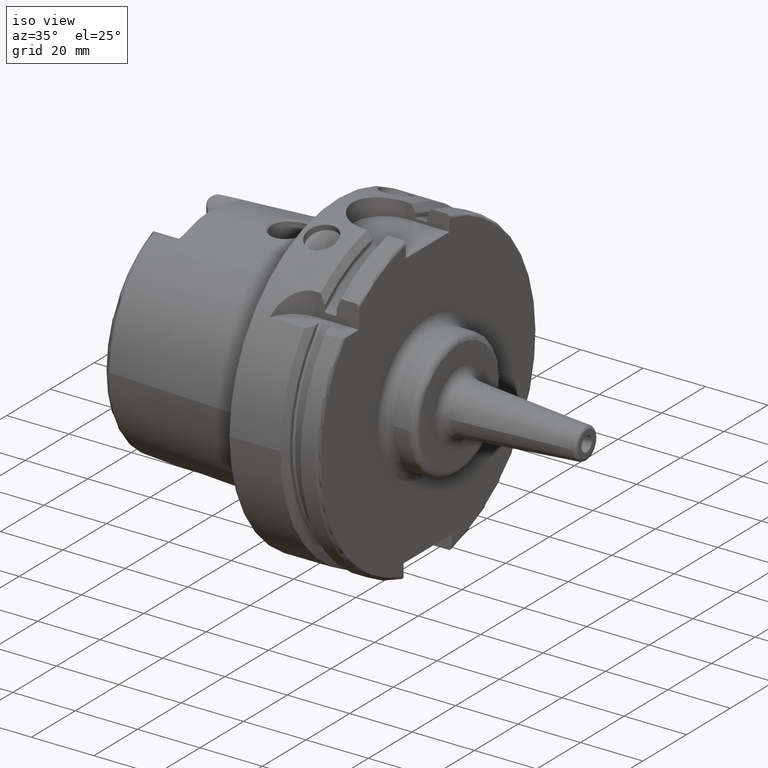
[diagram: clean part render]
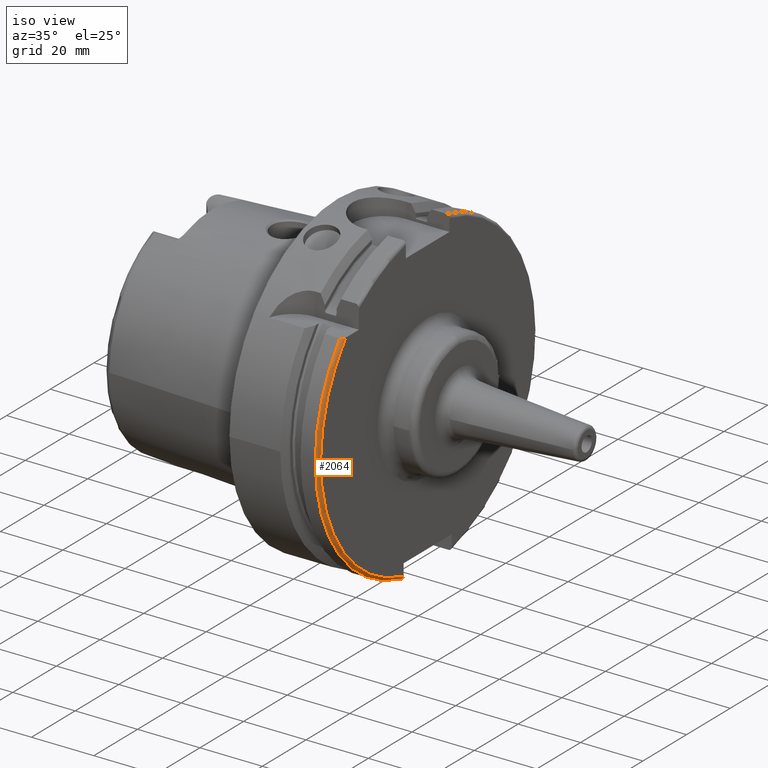
[diagram: same view with one face highlighted and labeled with its STEP entity id]
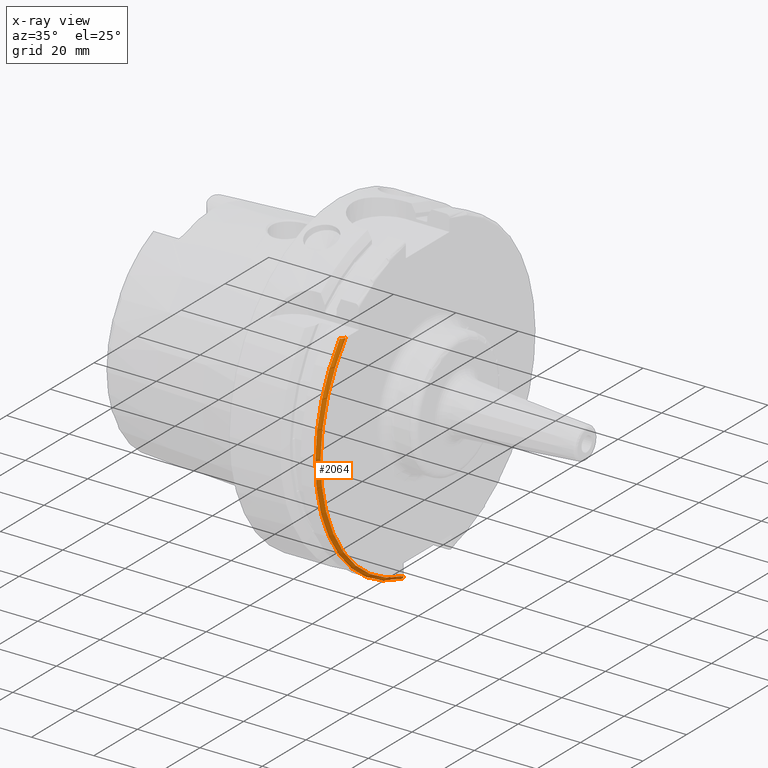
[diagram: x-ray of the same camera — body ghosted, the highlighted face saturated]
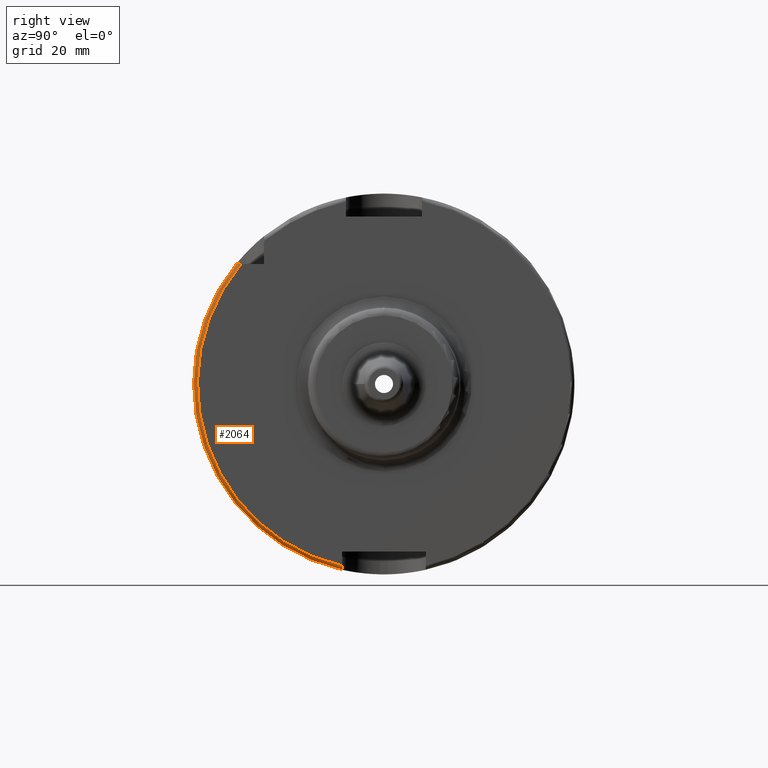
[diagram: same view with one face highlighted and labeled with its STEP entity id]
A machine part, iso view. The second image highlights one B-rep face of the part: STEP entity #2064.
The next image is the same camera in x-ray: the body ghosted, the highlighted face saturated — about 0% of this face is hidden behind the body in this view.
A second angle (right view) of the same face is appended — the face is thin or edge-on in the first view.
In plain terms, the highlighted toroidal blend (fillet) surface has major radius 49 mm and minor (blend) radius 1 mm.
Its self-contained STEP definition (entity closure, byte-faithful):
#76=B_SPLINE_CURVE_WITH_KNOTS('',3,(#4108,#4109,#4110,#4111,#4112,#4113,
#4114,#4115,#4116,#4117),.UNSPECIFIED.,.F.,.F.,(4,2,2,2,4),(-0.170825962094808,
-0.118543630596578,-0.0729156509442915,-0.0340271521483428,0.),
 .UNSPECIFIED.);
#86=B_SPLINE_CURVE_WITH_KNOTS('',3,(#4305,#4306,#4307,#4308,#4309,#4310,
#4311,#4312,#4313,#4314),.UNSPECIFIED.,.F.,.F.,(4,2,2,2,4),(0.,0.0367272650241839,
0.0739245844742874,0.111709319934006,0.150007250748607),.UNSPECIFIED.);
#474=FACE_OUTER_BOUND('',#602,.T.);
#602=EDGE_LOOP('',(#1693,#1694,#1695,#1696));
#683=CIRCLE('',#2173,49.);
#742=CIRCLE('',#2290,50.);
#815=VERTEX_POINT('',#3082);
#816=VERTEX_POINT('',#3084);
#928=VERTEX_POINT('',#4106);
#960=VERTEX_POINT('',#4304);
#1031=EDGE_CURVE('',#815,#816,#683,.T.);
#1177=EDGE_CURVE('',#815,#928,#76,.T.);
#1223=EDGE_CURVE('',#960,#816,#86,.T.);
#1238=EDGE_CURVE('',#928,#960,#742,.T.);
#1693=ORIENTED_EDGE('',*,*,#1177,.T.);
#1694=ORIENTED_EDGE('',*,*,#1238,.T.);
#1695=ORIENTED_EDGE('',*,*,#1223,.T.);
#1696=ORIENTED_EDGE('',*,*,#1031,.F.);
#1987=TOROIDAL_SURFACE('',#2289,49.,1.);
#2064=ADVANCED_FACE('',(#474),#1987,.T.);
#2173=AXIS2_PLACEMENT_3D('',#3085,#2465,#2466);
#2289=AXIS2_PLACEMENT_3D('',#4373,#2774,#2775);
#2290=AXIS2_PLACEMENT_3D('',#4374,#2776,#2777);
#2465=DIRECTION('center_axis',(1.,0.,0.));
#2466=DIRECTION('ref_axis',(0.,0.,-1.));
#2774=DIRECTION('center_axis',(1.,0.,0.));
#2775=DIRECTION('ref_axis',(0.,0.,-1.));
#2776=DIRECTION('center_axis',(1.,0.,0.));
#2777=DIRECTION('ref_axis',(0.,0.,-1.));
#3082=CARTESIAN_POINT('',(29.,-37.5333185316726,31.5));
#3084=CARTESIAN_POINT('',(29.,-11.,-47.7493455452533));
#3085=CARTESIAN_POINT('Origin',(29.,0.,0.));
#4106=CARTESIAN_POINT('',(28.,-38.8297566307078,31.5));
#4108=CARTESIAN_POINT('Ctrl Pts',(29.,-37.5333185316726,31.5));
#4109=CARTESIAN_POINT('Ctrl Pts',(29.,-37.7075929700001,31.5));
#4110=CARTESIAN_POINT('Ctrl Pts',(28.9664820083304,-37.9140187901503,31.5));
#4111=CARTESIAN_POINT('Ctrl Pts',(28.8572425149189,-38.2215616508799,31.5));
#4112=CARTESIAN_POINT('Ctrl Pts',(28.7693181429129,-38.3814988424326,31.5));
#4113=CARTESIAN_POINT('Ctrl Pts',(28.5860354601279,-38.5954486383736,31.5));
#4114=CARTESIAN_POINT('Ctrl Pts',(28.4650491410143,-38.6932205975694,31.5));
#4115=CARTESIAN_POINT('Ctrl Pts',(28.2458099245109,-38.7981421072727,31.5));
#4116=CARTESIAN_POINT('Ctrl Pts',(28.1134238404945,-38.8297566307078,31.5));
#4117=CARTESIAN_POINT('Ctrl Pts',(28.,-38.8297566307078,31.5));
#4304=CARTESIAN_POINT('',(28.,-11.,-48.7749935930288));
#4305=CARTESIAN_POINT('Ctrl Pts',(28.,-11.,-48.7749935930288));
#4306=CARTESIAN_POINT('Ctrl Pts',(28.1224242167473,-11.,-48.7749935930288));
#4307=CARTESIAN_POINT('Ctrl Pts',(28.2664089378791,-11.,-48.7458273107991));
#4308=CARTESIAN_POINT('Ctrl Pts',(28.4935811491945,-11.,-48.6503638235243));
#4309=CARTESIAN_POINT('Ctrl Pts',(28.6165742030546,-11.,-48.5666323605576));
#4310=CARTESIAN_POINT('Ctrl Pts',(28.7919641478885,-11.,-48.3885636593617));
#4311=CARTESIAN_POINT('Ctrl Pts',(28.8748308300651,-11.,-48.2621670900838));
#4312=CARTESIAN_POINT('Ctrl Pts',(28.9706639476237,-11.,-48.0273618911654));
#4313=CARTESIAN_POINT('Ctrl Pts',(29.,-11.,-47.8770053146353));
#4314=CARTESIAN_POINT('Ctrl Pts',(29.,-11.,-47.7493455452533));
#4373=CARTESIAN_POINT('Origin',(28.,0.,0.));
#4374=CARTESIAN_POINT('Origin',(28.,0.,0.));